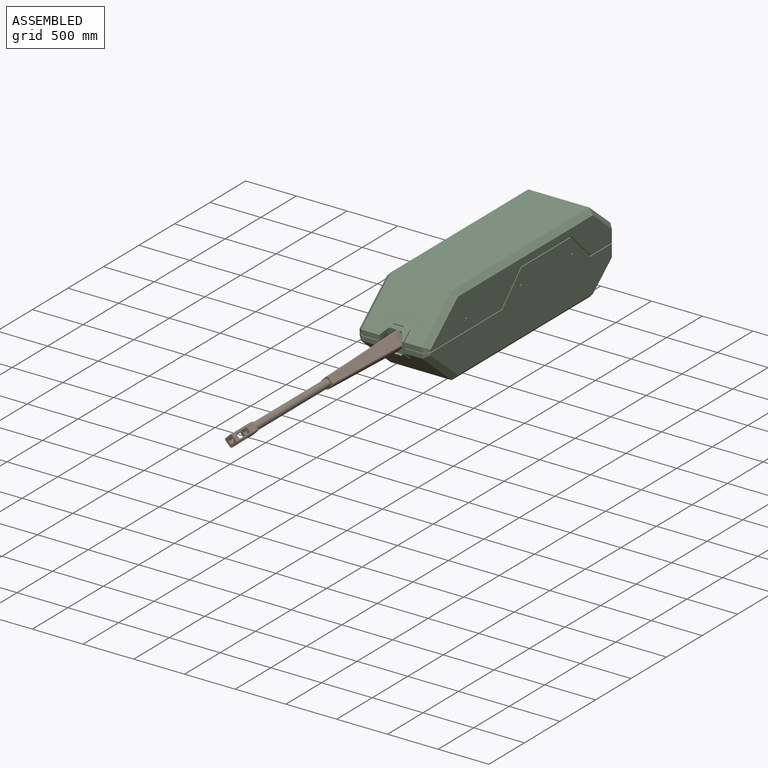
[diagram: assembled view]
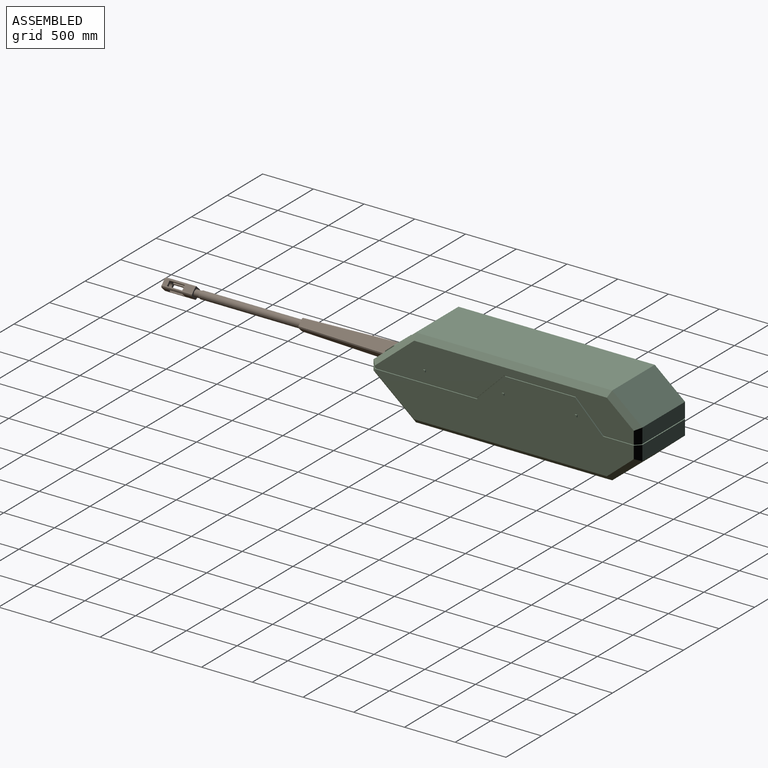
[diagram: assembled view, second angle]
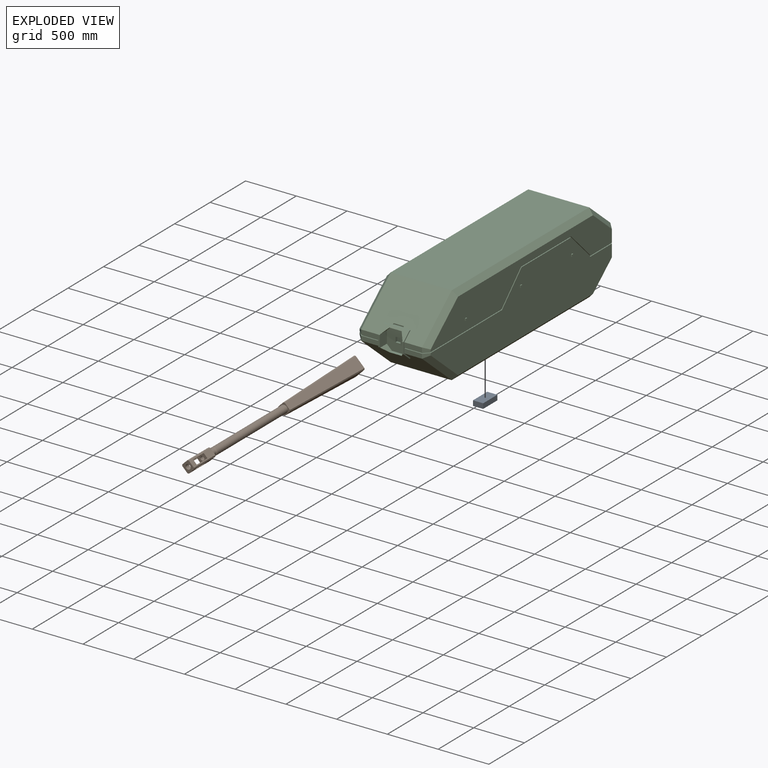
[diagram: exploded view]
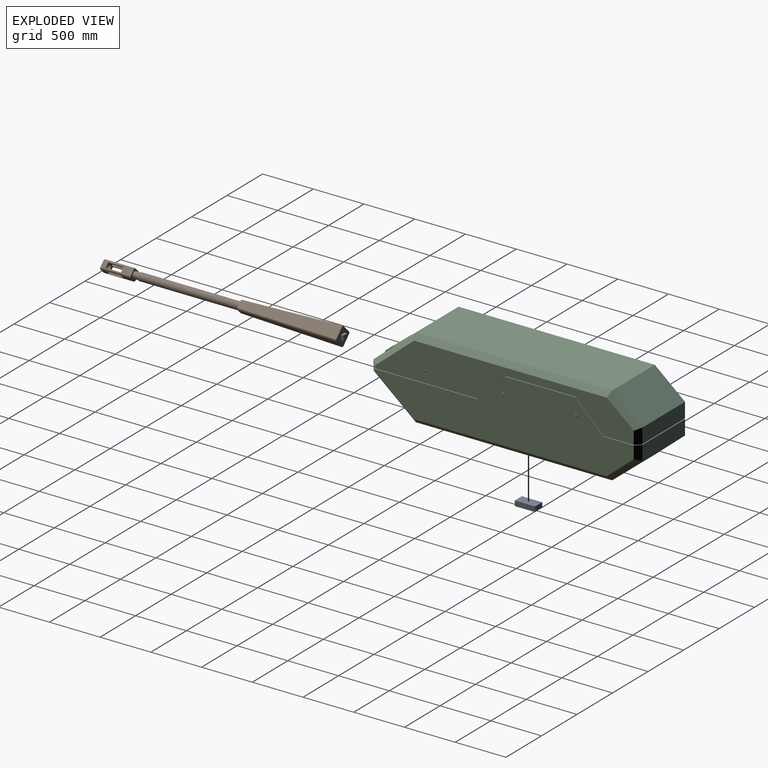
[diagram: exploded view, second angle]
ASSEMBLY  parts=3 mates=2
PART A: 6 faces, bbox 100x200x50 mm
  f0: plane 100x50mm, normal (0,-1,0), area 5000mm2, adj f1,f3,f4,f5
  f1: plane 200x50mm, normal (-1,0,0), area 10000mm2, adj f0,f2,f4,f5
  f2: plane 100x50mm, normal (0,1,0), area 5000mm2, adj f1,f3,f4,f5
  f3: plane 200x50mm, normal (1,0,0), area 10000mm2, adj f0,f2,f4,f5
  f4: plane 200x100mm, normal (0,0,-1), area 20000mm2, adj f0,f1,f2,f3
  f5: plane 200x100mm, normal (0,0,1), area 20000mm2, adj f0,f1,f2,f3
PART B: 41 faces, bbox 185.9x2375x185.9 mm
  f0: plane 300x50.86mm, normal (-0.71,0,0.71), area 14077.2mm2, adj f19,f20,f25,f28,f31,f33,f36,f37
  f1: plane 300x50.86mm, normal (0.71,0,-0.71), area 14077.2mm2, adj f19,f20,f26,f27,f31,f33,f34,f35
  f2: plane 150x14.82mm, normal (0.71,0,-0.71), area 3144.3mm2, adj f4,f31,f33,f36
  f3: plane 150x14.82mm, normal (-0.71,0,0.71), area 3144.3mm2, adj f4,f31,f33,f35
  f4: plane 300x50.86mm, normal (-0.71,0,-0.71), area 14077.2mm2, adj f2,f3,f19,f20,f25,f26,f31,f33
  f5: plane 300x50.86mm, normal (0.71,0,0.71), area 14077.2mm2, adj f19,f20,f27,f28,f30,f31,f32,f33
  f6: plane 50x25mm, normal (0,0,1), area 1250mm2, adj f7,f9,f10,f12
  f7: plane 50x25mm, normal (-1,0,0), area 1250mm2, adj f6,f8,f10,f12
  f8: plane 50x25mm, normal (0,0,-1), area 1250mm2, adj f7,f9,f10,f12
  f9: plane 50x25mm, normal (1,0,0), area 1250mm2, adj f6,f8,f10,f12
  f10: plane 50x50mm, normal (0,1,0), area 2500mm2, adj f6,f7,f8,f9
  f11: plane 115.15x115.15mm, normal (0,-1,0), area 3740.1mm2, adj f13,f14,f15,f16,f17,f21,f22,f23
  f12: plane 185.86x185.86mm, normal (0,1,0), area 17300.1mm2, adj f6,f7,f8,f9,f13,f14,f15,f16
  f13: plane 1000x85.86mm, normal (0.71,-0.02,0.71), area 96457.7mm2, adj f11,f12,f23,f24
  f14: plane 1000x85.86mm, normal (0.71,-0.02,-0.71), area 96457.7mm2, adj f11,f12,f22,f23
  f15: plane 1000x85.86mm, normal (-0.71,-0.02,0.71), area 96457.7mm2, adj f11,f12,f21,f24
  f16: plane 1000x85.86mm, normal (-0.71,-0.02,-0.71), area 96457.7mm2, adj f11,f12,f21,f22
  f17: cylinder r=37.5mm len=991.34mm, axis (0,1,0), area 233578.9mm2, adj f11,f29
  f18: cylinder r=32.5mm len=65mm, axis (0,1,0), area 10210.2mm2, adj f20,f29
  f19: plane 115.86x115.86mm, normal (0,-1,0), area 6286.5mm2, adj f0,f1,f4,f5,f25,f26,f27,f28
  f20: plane 115.86x115.86mm, normal (0,1,0), area 4931.7mm2, adj f0,f1,f4,f5,f18,f25,f26,f27
  f21: plane 1000x35.36mm, normal (-1,-0.04,0), area 14146.6mm2, adj f11,f12,f15,f16
  f22: plane 1000x35.36mm, normal (0,-0.04,-1), area 14146.6mm2, adj f11,f12,f14,f16
  f23: plane 1000x35.36mm, normal (1,-0.04,0), area 14146.6mm2, adj f11,f12,f13,f14
  f24: plane 1000x35.36mm, normal (0,-0.04,1), area 14146.6mm2, adj f11,f12,f13,f15
  f25: plane 300x14.14mm, normal (-1,0,0), area 4242.6mm2, adj f0,f4,f19,f20
  f26: plane 300x14.14mm, normal (0,0,-1), area 4242.6mm2, adj f1,f4,f19,f20
  f27: plane 300x14.14mm, normal (1,0,0), area 4242.6mm2, adj f1,f5,f19,f20
  f28: plane 300x14.14mm, normal (0,0,1), area 4242.6mm2, adj f0,f5,f19,f20
  f29: cone r=32.5mm half-angle=30deg, axis (0,1,0), area 2199.1mm2, adj f17,f18
  f30: plane 150x14.82mm, normal (0.71,0,-0.71), area 3144.3mm2, adj f5,f31,f33,f37
  f31: plane 100.36x100.36mm, normal (0,1,0), area 4728.9mm2, adj f0,f1,f2,f3,f4,f5,f30,f32
  f32: plane 150x14.82mm, normal (-0.71,0,0.71), area 3144.3mm2, adj f5,f31,f33,f34
  f33: plane 100.36x100.36mm, normal (0,-1,0), area 5435.8mm2, adj f0,f1,f2,f3,f4,f5,f30,f32
  f34: plane 150x14.82mm, normal (-0.71,0,-0.71), area 3144.3mm2, adj f1,f31,f32,f33
  f35: plane 150x14.82mm, normal (0.71,0,0.71), area 3144.3mm2, adj f1,f3,f31,f33
  f36: plane 150x14.82mm, normal (0.71,0,0.71), area 3144.3mm2, adj f0,f2,f31,f33
  f37: plane 150x14.82mm, normal (-0.71,0,-0.71), area 3144.3mm2, adj f0,f30,f31,f33
  f38: cylinder r=25mm len=50mm, axis (0,-1,0), area 7854mm2, adj f19,f31
  f39: cylinder r=20mm len=100mm, axis (0,-1,0), area 12566.4mm2, adj f33,f40
  f40: plane 40x40mm, normal (0,-1,0), area 1256.6mm2, adj f39
PART C: 126 faces, bbox 720x2660x800 mm
  f0: plane 1934.95x600mm, normal (0,0,-1), area 1140968.7mm2, adj f29,f32,f35,f83,f121,f122,f123,f124
  f1: plane 220x220mm, normal (0,-1,0), area 40900mm2, adj f108,f109,f110,f111,f112,f113,f114,f115
  f2: plane 109.33x15mm, normal (0,-1,0), area 1639.9mm2, adj f5,f25,f40,f111
  f3: plane 2550x345mm, normal (1,0,0), area 519220.1mm2, adj f9,f13,f14,f15,f16,f17,f20,f43
  f4: plane 2550x620mm, normal (1,0,0), area 1052791.9mm2, adj f30,f33,f34,f35,f36,f37,f38,f44
  f5: plane 250x99.38mm, normal (1,0,0), area 3407.7mm2, adj f2,f6,f7,f8,f9,f24,f25,f28
  f6: plane 175x45mm, normal (0,-1,0), area 7875mm2, adj f5,f7,f9,f13
  f7: plane 600x417.11mm, normal (0,-0.64,0.77), area 295976.5mm2, adj f5,f6,f11,f14,f24,f26,f27,f66
  f8: plane 170.86x10mm, normal (0,-1,0), area 1708.6mm2, adj f5,f9,f21,f30
  f9: plane 1050x225mm, normal (0,0,-1), area 12374.3mm2, adj f3,f5,f6,f8,f13,f21,f22,f43
  f10: plane 600x145mm, normal (0,1,0), area 87000mm2, adj f12,f17,f20,f74
  f11: plane 1934.95x600mm, normal (0,0,1), area 1160968.7mm2, adj f7,f12,f15,f72
  f12: plane 600x297.94mm, normal (0,0.64,0.77), area 233358.6mm2, adj f10,f11,f16,f73
  f13: plane 50x50mm, normal (0.71,-0.71,0), area 2357.7mm2, adj f3,f6,f9,f14
  f14: plane 435.31x373.32mm, normal (0.71,-0.45,0.54), area 37034.5mm2, adj f3,f7,f13,f15
  f15: plane 1934.95x50mm, normal (0.71,0,0.71), area 135534.6mm2, adj f3,f11,f14,f16
  f16: plane 316.14x273.32mm, normal (0.71,0.45,0.54), area 26033.8mm2, adj f3,f12,f15,f17
  f17: plane 145x50mm, normal (0.71,0.71,0), area 9428.7mm2, adj f3,f10,f16,f20
  f18: plane 44.14x44.14mm, normal (0.71,0.71,0), area 624.3mm2, adj f19,f20,f22,f38
  f19: plane 591.72x10mm, normal (0,1,0), area 5917.2mm2, adj f18,f20,f38,f75
  f20: plane 700x350mm, normal (0,0,-1), area 13248.5mm2, adj f3,f10,f17,f18,f19,f22,f47,f64
  f21: plane 44.14x44.14mm, normal (0.71,-0.71,0), area 624.3mm2, adj f8,f9,f22,f30
  f22: plane 2541.72x285mm, normal (1,0,0), area 27695.3mm2, adj f9,f18,f20,f21,f30,f38,f43,f44
  f23: plane 109.33x15mm, normal (0,-1,0), area 1639.9mm2, adj f25,f40,f66,f109
  f24: plane 250x27.47mm, normal (0,0,1), area 5081.1mm2, adj f5,f7,f25,f26,f27,f66,f78
  f25: plane 250x83.82mm, normal (0,-0.64,0.77), area 12305.9mm2, adj f2,f5,f23,f24,f66,f108,f109,f111
  f26: plane 100x10mm, normal (0,-1,0), area 1000mm2, adj f7,f24,f27,f78
  f27: plane 11.92x10mm, normal (-1,0,0), area 59.6mm2, adj f7,f24,f26
  f28: plane 175x45mm, normal (0,-1,0), area 7875mm2, adj f5,f29,f30,f33
  f29: plane 600x417.11mm, normal (0,-0.64,-0.77), area 295976.5mm2, adj f0,f5,f28,f34,f39,f41,f42,f66
  f30: plane 1054.14x225mm, normal (0,0,1), area 12415.7mm2, adj f4,f5,f8,f21,f22,f28,f33,f44
  f31: plane 600x145mm, normal (0,1,0), area 87000mm2, adj f32,f37,f38,f85
  f32: plane 600x297.94mm, normal (0,0.64,-0.77), area 233358.6mm2, adj f0,f31,f36,f84
  f33: plane 50x50mm, normal (0.71,-0.71,0), area 2357.7mm2, adj f4,f28,f30,f34
  f34: plane 435.31x373.32mm, normal (0.71,-0.45,-0.54), area 37034.5mm2, adj f4,f29,f33,f35
  f35: plane 1934.95x50mm, normal (0.71,0,-0.71), area 135534.6mm2, adj f0,f4,f34,f36
  f36: plane 316.14x273.32mm, normal (0.71,0.45,-0.54), area 26033.8mm2, adj f4,f32,f35,f37
  f37: plane 145x50mm, normal (0.71,0.71,0), area 9428.7mm2, adj f4,f31,f36,f38
  f38: plane 700x354.14mm, normal (0,0,1), area 13331.4mm2, adj f4,f18,f19,f22,f31,f37,f46,f65
  f39: plane 250x27.47mm, normal (0,0,-1), area 5081.1mm2, adj f5,f29,f40,f41,f42,f66,f86
  f40: plane 250x83.82mm, normal (0,-0.64,-0.77), area 12305.9mm2, adj f2,f5,f23,f39,f66,f109,f110,f111
  f41: plane 100x10mm, normal (0,-1,0), area 1000mm2, adj f29,f39,f42,f86
  f42: plane 11.92x10mm, normal (-1,0,0), area 59.6mm2, adj f29,f39,f41
  f43: plane 275x275mm, normal (0,0.71,-0.71), area 3889.1mm2, adj f3,f9,f22,f48
  f44: plane 275x275mm, normal (0,-0.71,0.71), area 3889.1mm2, adj f4,f22,f30,f45
  f45: plane 691.72x10mm, normal (0,0,1), area 6917.2mm2, adj f4,f22,f44,f46
  f46: plane 275x275mm, normal (0,0.71,0.71), area 3889.1mm2, adj f4,f22,f38,f45
  f47: plane 275x275mm, normal (0,-0.71,-0.71), area 3889.1mm2, adj f3,f20,f22,f48
  f48: plane 700x10mm, normal (0,0,-1), area 7000mm2, adj f3,f22,f43,f47
  f49: plane 20x10mm, normal (0,0,1), area 200mm2, adj f4,f50,f52,f53
  f50: plane 20x10mm, normal (0,-1,0), area 200mm2, adj f4,f49,f51,f53
  f51: plane 20x10mm, normal (0,0,-1), area 200mm2, adj f4,f50,f52,f53
  f52: plane 20x10mm, normal (0,1,0), area 200mm2, adj f4,f49,f51,f53
  f53: plane 20x20mm, normal (1,0,0), area 400mm2, adj f49,f50,f51,f52
  f54: plane 20x10mm, normal (0,-1,0), area 200mm2, adj f4,f55,f57,f58
  f55: plane 20x10mm, normal (0,0,-1), area 200mm2, adj f4,f54,f56,f58
  f56: plane 20x10mm, normal (0,1,0), area 200mm2, adj f4,f55,f57,f58
  f57: plane 20x10mm, normal (0,0,1), area 200mm2, adj f4,f54,f56,f58
  f58: plane 20x20mm, normal (1,0,0), area 400mm2, adj f54,f55,f56,f57
  f59: plane 20x10mm, normal (0,0,-1), area 200mm2, adj f3,f60,f62,f63
  f60: plane 20x10mm, normal (0,1,0), area 200mm2, adj f3,f59,f61,f63
  f61: plane 20x10mm, normal (0,0,1), area 200mm2, adj f3,f60,f62,f63
  f62: plane 20x10mm, normal (0,-1,0), area 200mm2, adj f3,f59,f61,f63
  f63: plane 20x20mm, normal (1,0,0), area 400mm2, adj f59,f60,f61,f62
  f64: plane 2550x345mm, normal (-1,0,0), area 519220.1mm2, adj f20,f69,f70,f71,f72,f73,f74,f87
  f65: plane 2550x620mm, normal (-1,0,0), area 1052791.9mm2, adj f38,f80,f81,f82,f83,f84,f85,f88
  f66: plane 250x99.38mm, normal (-1,0,0), area 3407.7mm2, adj f7,f23,f24,f25,f29,f39,f40,f67
  f67: plane 175x45mm, normal (0,-1,0), area 7875mm2, adj f7,f66,f69,f70
  f68: plane 170.86x10mm, normal (0,-1,0), area 1708.6mm2, adj f66,f69,f76,f80
  f69: plane 1050x225mm, normal (0,0,-1), area 12374.3mm2, adj f64,f66,f67,f68,f70,f76,f77,f87
  f70: plane 50x50mm, normal (-0.71,-0.71,0), area 2357.7mm2, adj f64,f67,f69,f71
  f71: plane 435.31x373.32mm, normal (-0.71,-0.45,0.54), area 37034.5mm2, adj f7,f64,f70,f72
  f72: plane 1934.95x50mm, normal (-0.71,0,0.71), area 135534.6mm2, adj f11,f64,f71,f73
  f73: plane 316.14x273.32mm, normal (-0.71,0.45,0.54), area 26033.8mm2, adj f12,f64,f72,f74
  f74: plane 145x50mm, normal (-0.71,0.71,0), area 9428.7mm2, adj f10,f20,f64,f73
  f75: plane 44.14x44.14mm, normal (-0.71,0.71,0), area 624.3mm2, adj f19,f20,f38,f77
  f76: plane 44.14x44.14mm, normal (-0.71,-0.71,0), area 624.3mm2, adj f68,f69,f77,f80
  f77: plane 2541.72x285mm, normal (-1,0,0), area 27695.3mm2, adj f20,f38,f69,f75,f76,f80,f87,f88
  f78: plane 11.92x10mm, normal (1,0,0), area 59.6mm2, adj f7,f24,f26
  f79: plane 175x45mm, normal (0,-1,0), area 7875mm2, adj f29,f66,f80,f81
  f80: plane 1054.14x225mm, normal (0,0,1), area 12415.7mm2, adj f65,f66,f68,f76,f77,f79,f81,f88
  f81: plane 50x50mm, normal (-0.71,-0.71,0), area 2357.7mm2, adj f65,f79,f80,f82
  f82: plane 435.31x373.32mm, normal (-0.71,-0.45,-0.54), area 37034.5mm2, adj f29,f65,f81,f83
  f83: plane 1934.95x50mm, normal (-0.71,0,-0.71), area 135534.6mm2, adj f0,f65,f82,f84
  f84: plane 316.14x273.32mm, normal (-0.71,0.45,-0.54), area 26033.8mm2, adj f32,f65,f83,f85
  f85: plane 145x50mm, normal (-0.71,0.71,0), area 9428.7mm2, adj f31,f38,f65,f84
  f86: plane 11.92x10mm, normal (1,0,0), area 59.6mm2, adj f29,f39,f41
  f87: plane 275x275mm, normal (0,0.71,-0.71), area 3889.1mm2, adj f64,f69,f77,f92
  f88: plane 275x275mm, normal (0,-0.71,0.71), area 3889.1mm2, adj f65,f77,f80,f89
  f89: plane 691.72x10mm, normal (0,0,1), area 6917.2mm2, adj f65,f77,f88,f90
  f90: plane 275x275mm, normal (0,0.71,0.71), area 3889.1mm2, adj f38,f65,f77,f89
  f91: plane 275x275mm, normal (0,-0.71,-0.71), area 3889.1mm2, adj f20,f64,f77,f92
  f92: plane 700x10mm, normal (0,0,-1), area 7000mm2, adj f64,f77,f87,f91
  f93: plane 20x10mm, normal (0,0,1), area 200mm2, adj f65,f94,f96,f97
  f94: plane 20x10mm, normal (0,-1,0), area 200mm2, adj f65,f93,f95,f97
  f95: plane 20x10mm, normal (0,0,-1), area 200mm2, adj f65,f94,f96,f97
  f96: plane 20x10mm, normal (0,1,0), area 200mm2, adj f65,f93,f95,f97
  f97: plane 20x20mm, normal (-1,0,0), area 400mm2, adj f93,f94,f95,f96
  f98: plane 20x10mm, normal (0,-1,0), area 200mm2, adj f65,f99,f101,f102
  f99: plane 20x10mm, normal (0,0,-1), area 200mm2, adj f65,f98,f100,f102
  f100: plane 20x10mm, normal (0,1,0), area 200mm2, adj f65,f99,f101,f102
  f101: plane 20x10mm, normal (0,0,1), area 200mm2, adj f65,f98,f100,f102
  f102: plane 20x20mm, normal (-1,0,0), area 400mm2, adj f98,f99,f100,f101
  f103: plane 20x10mm, normal (0,0,-1), area 200mm2, adj f64,f104,f106,f107
  f104: plane 20x10mm, normal (0,1,0), area 200mm2, adj f64,f103,f105,f107
  f105: plane 20x10mm, normal (0,0,1), area 200mm2, adj f64,f104,f106,f107
  f106: plane 20x10mm, normal (0,-1,0), area 200mm2, adj f64,f103,f105,f107
  f107: plane 20x20mm, normal (-1,0,0), area 400mm2, adj f103,f104,f105,f106
  f108: plane 120x34.05mm, normal (0,0,-1), area 4086.2mm2, adj f1,f25,f114,f115
  f109: plane 120x100mm, normal (1,0,0), area 11966.1mm2, adj f1,f23,f25,f40,f112,f114
  f110: plane 120x34.05mm, normal (0,0,1), area 4086.2mm2, adj f1,f40,f112,f113
  f111: plane 120x100mm, normal (-1,0,0), area 11966.1mm2, adj f1,f2,f25,f40,f113,f115
  f112: plane 93.64x50mm, normal (0.71,0,0.71), area 4514.6mm2, adj f1,f40,f109,f110
  f113: plane 93.64x50mm, normal (-0.71,0,0.71), area 4514.6mm2, adj f1,f40,f110,f111
  f114: plane 93.64x50mm, normal (0.71,0,-0.71), area 4514.6mm2, adj f1,f25,f108,f109
  f115: plane 93.64x50mm, normal (-0.71,0,-0.71), area 4514.6mm2, adj f1,f25,f108,f111
  f116: plane 50x25mm, normal (0,0,-1), area 1250mm2, adj f1,f117,f119,f120
  f117: plane 50x25mm, normal (1,0,0), area 1250mm2, adj f1,f116,f118,f120
  f118: plane 50x25mm, normal (0,0,1), area 1250mm2, adj f1,f117,f119,f120
  f119: plane 50x25mm, normal (-1,0,0), area 1250mm2, adj f1,f116,f118,f120
  f120: plane 50x50mm, normal (0,-1,0), area 2500mm2, adj f116,f117,f118,f119
  f121: plane 100x25mm, normal (0,1,0), area 2500mm2, adj f0,f122,f124,f125
  f122: plane 200x25mm, normal (1,0,0), area 5000mm2, adj f0,f121,f123,f125
  f123: plane 100x25mm, normal (0,-1,0), area 2500mm2, adj f0,f122,f124,f125
  f124: plane 200x25mm, normal (-1,0,0), area 5000mm2, adj f0,f121,f123,f125
  f125: plane 200x100mm, normal (0,0,-1), area 20000mm2, adj f121,f122,f123,f124
PLACE A t=(-387.78,-1317.11,296.56)mm
PLACE B t=(-387.78,-1317.11,296.56)mm
PLACE C t=(-387.78,-1317.11,296.56)mm
MATE fastened B.f39 <-> C.f120  axis (0,1,0) through (-387.78,-1202.11,296.56)mm
MATE fastened C.f125 <-> A.f5  axis (0,0,-1) through (-387.78,0,-78.44)mm
